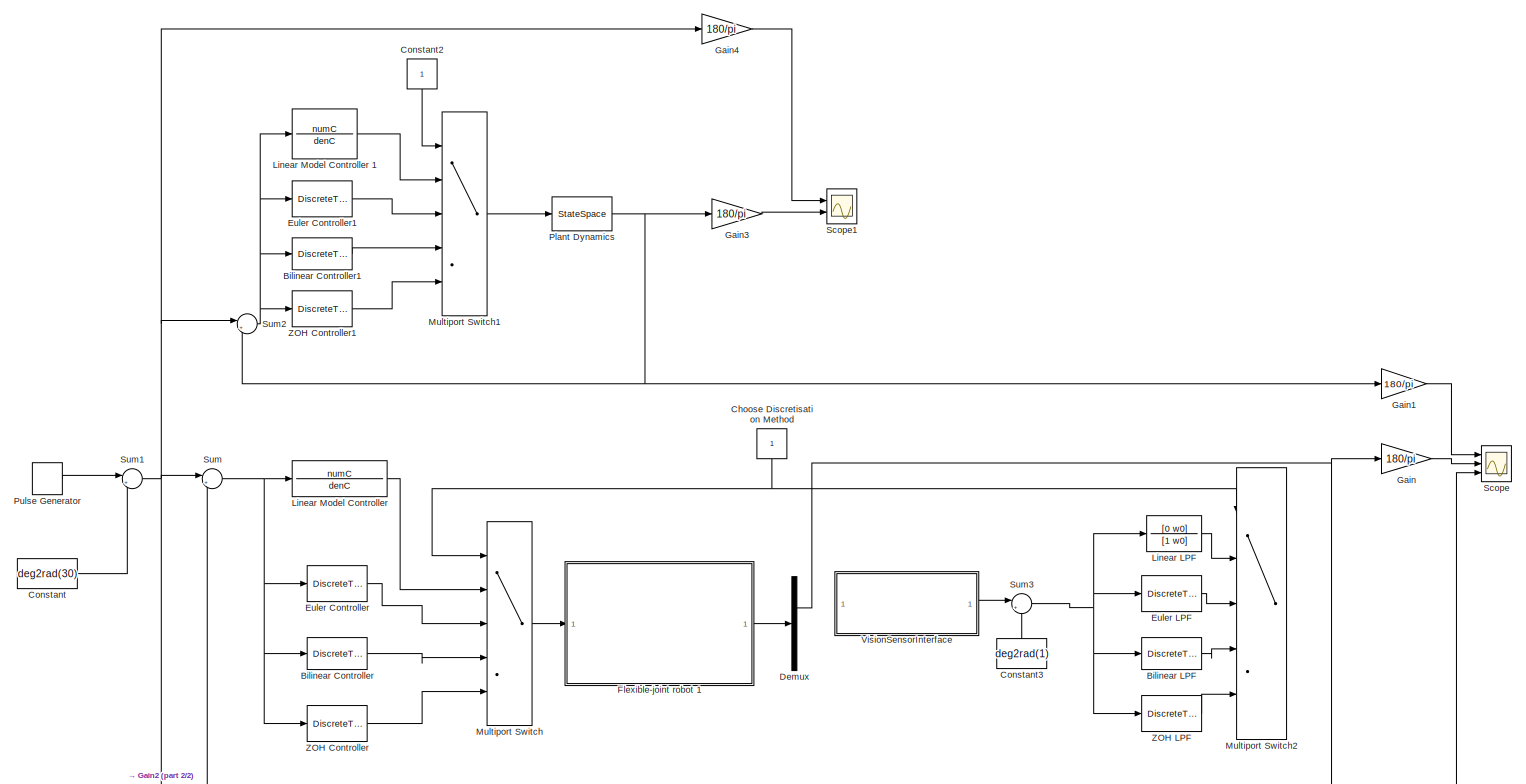
[diagram: root canvas - part 1/2, most of the canvas]
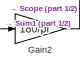
[diagram: root canvas - part 2/2, bottom right region]
MODEL slx_4cde97b0270c
KIND model
CONFIG AbsTol = auto
CONFIG EnableMultiTasking = off
CONFIG FixedStep = auto
CONFIG MaxStep = auto
CONFIG MinStep = auto
CONFIG RelTol = 1e-3
CONFIG SampleTimeConstraint = Unconstrained
CONFIG SolverName = ode45
CONFIG StartTime = 0.0
CONFIG StopTime = 20
BLOCK [DiscreteTransferFcn] Bilinear Controller
  Denominator = denTustin
  InputPortMap = u0
  Numerator = numTustin
  Ports = [1, 1]
BLOCK [DiscreteTransferFcn] Bilinear Controller1
  Denominator = denTustin
  InputPortMap = u0
  Numerator = numTustin
  Ports = [1, 1]
BLOCK [DiscreteTransferFcn] Bilinear LPF
  Denominator = denLPTustin
  InputPortMap = u0
  Numerator = numLPTustin
  Ports = [1, 1]
BLOCK [Constant] Choose Discretisation Method
  NameLocation = left
BLOCK [Constant] Constant
  Value = deg2rad(30)
BLOCK [Constant] Constant2
  NameLocation = left
BLOCK [Constant] Constant3
  NameLocation = right
  Value = deg2rad(1)
BLOCK [Demux] Demux
  Outputs = 5
  Ports = [1, 5]
BLOCK [DiscreteTransferFcn] Euler Controller
  Denominator = denEuler
  InputPortMap = u0
  Numerator = numEuler
  Ports = [1, 1]
BLOCK [DiscreteTransferFcn] Euler Controller1
  Denominator = denEuler
  InputPortMap = u0
  Numerator = numEuler
  Ports = [1, 1]
BLOCK [DiscreteTransferFcn] Euler LPF
  Denominator = denLPEuler
  InputPortMap = u0
  Numerator = numLPEuler
  Ports = [1, 1]
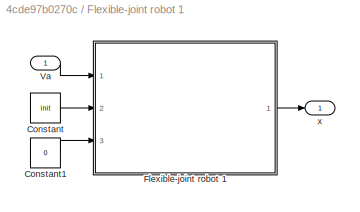
BLOCK [SubSystem] Flexible-joint robot 1
  Ports = [1, 1]
  RequestExecContextInheritance = off
BLOCK [Constant] Flexible-joint robot 1/Constant
  Value = init
BLOCK [Constant] Flexible-joint robot 1/Constant1
  Value = 0
BLOCK [ModelReference] Flexible-joint robot 1/Flexible-joint robot 1
  CopyOfModelProtected = on
  ModelNameDialog = Flexible_joint_robot_1
  ModelReferenceVersion = 1.65
  Ports = [3, 1]
BLOCK [Inport] Flexible-joint robot 1/Va
BLOCK [Outport] Flexible-joint robot 1/x
BLOCK [Gain] Gain
  Gain = 180/pi
BLOCK [Gain] Gain1
  Gain = 180/pi
BLOCK [Gain] Gain2
  Gain = 180/pi
BLOCK [Gain] Gain3
  Gain = 180/pi
BLOCK [Gain] Gain4
  Gain = 180/pi
BLOCK [TransferFcn] Linear LPF
  Denominator = [1 w0]
  Numerator = [0 w0]
BLOCK [TransferFcn] Linear Model Controller
  Denominator = denC
  Numerator = numC
BLOCK [TransferFcn] Linear Model Controller 1
  Denominator = denC
  Numerator = numC
BLOCK [MultiPortSwitch] Multiport Switch
  InputSameDT = off
  Inputs = 4
  Ports = [5, 1]
  SaturateOnIntegerOverflow = off
BLOCK [MultiPortSwitch] Multiport Switch1
  InputSameDT = off
  Inputs = 4
  Ports = [5, 1]
  SaturateOnIntegerOverflow = off
BLOCK [MultiPortSwitch] Multiport Switch2
  InputSameDT = off
  Inputs = 4
  Ports = [5, 1]
  SaturateOnIntegerOverflow = off
BLOCK [StateSpace] Plant Dynamics
  A = A
  B = B
  C = C
  D = D
  InitialCondition = deg2rad(30)
  Ports = [1, 1]
BLOCK [DiscretePulseGenerator] Pulse Generator
  Amplitude = deg2rad(30)
  Period = 10
  Ports = [0, 1]
  PulseType = Time based
  PulseWidth = 50
BLOCK [Scope] Scope
  Floating = off
  NumInputPorts = 3
  Ports = [3]
  ScopeSpecificationString = Simulink.scopes.TimeScopeBlockCfg('CurrentConfiguration', extmgr.ConfigurationSet(extmgr.Configuration('Core','General UI',true,'FigureColor',[1 1 1]),extmgr.Configuration('Core','Source UI',true),extmgr.Configuration('Sources','WiredSimulink',true),extmgr.Configuration('Visuals','Time Domain',true,'SerializedDisplays',{struct('MinYLimReal','25.12361','MaxYLimReal','64.63964','YLabelReal','','MinY...<+1860ch>
BLOCK [Scope] Scope1
  Floating = off
  NumInputPorts = 2
  Ports = [2]
  ScopeSpecificationString = Simulink.scopes.TimeScopeBlockCfg('CurrentConfiguration', extmgr.ConfigurationSet(extmgr.Configuration('Core','General UI',true,'FigureColor',[1 1 1]),extmgr.Configuration('Core','Source UI',true),extmgr.Configuration('Sources','WiredSimulink',true,'DataLoggingVariableName','ScopeData1'),extmgr.Configuration('Visuals','Time Domain',true,'SerializedDisplays',{struct('MinYLimReal','23.75112','MaxYLi...<+1691ch>
BLOCK [Sum] Sum
  Inputs = |+-
  Ports = [2, 1]
BLOCK [Sum] Sum1
  Inputs = |++
  Ports = [2, 1]
BLOCK [Sum] Sum2
  Inputs = |+-
  Ports = [2, 1]
BLOCK [Sum] Sum3
  Inputs = |+-
  Ports = [2, 1]
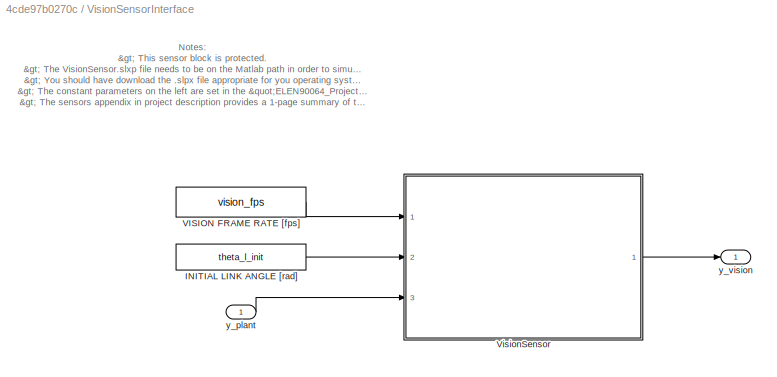
BLOCK [SubSystem] VisionSensorInterface
  Ports = [1, 1]
  RequestExecContextInheritance = off
  TreatAsAtomicUnit = on
BLOCK [Constant] VisionSensorInterface/INITIAL LINK ANGLE [rad]
  Value = theta_l_init
BLOCK [Constant] VisionSensorInterface/VISION FRAME RATE [fps]
  Value = vision_fps
BLOCK [ModelReference] VisionSensorInterface/VisionSensor
  CopyOfModelProtected = on
  ModelNameDialog = VisionSensor.slxp
  ModelReferenceVersion = 1.19
  Ports = [3, 1]
BLOCK [Inport] VisionSensorInterface/y_plant
BLOCK [Outport] VisionSensorInterface/y_vision
BLOCK [DiscreteTransferFcn] ZOH Controller
  Denominator = denZOH
  InputPortMap = u0
  Numerator = numZOH
  Ports = [1, 1]
BLOCK [DiscreteTransferFcn] ZOH Controller1
  Denominator = denZOH
  InputPortMap = u0
  Numerator = numZOH
  Ports = [1, 1]
BLOCK [DiscreteTransferFcn] ZOH LPF
  Denominator = denLPZOH
  InputPortMap = u0
  Numerator = numLPZOH
  Ports = [1, 1]
ANNOTATION VisionSensorInterface: Notes: > This sensor block is protected. > The VisionSensor.slxp file needs to be on the Matlab path in order to simulate this sensor. > You should have download the .slpx file appropriate for you operating system {Windows, Mac, Linux}. > The constant parameters on the left are set in the "ELEN90064_Project_Parameters.m" script. > The sensors appendix in project description provides a 1-page summa...<+179ch>
LINE Bilinear Controller1:1 -> Multiport Switch1:4
LINE Bilinear Controller:1 -> Multiport Switch:4
LINE Bilinear LPF:1 -> Multiport Switch2:4
NET Choose Discretisation Method:1 -> Multiport Switch2:1, Multiport Switch:1
LINE Constant2:1 -> Multiport Switch1:1
LINE Constant3:1 -> Sum3:2
LINE Constant:1 -> Sum1:2
NET Demux:2 -> Gain:1, Sum:2
LINE Euler Controller1:1 -> Multiport Switch1:3
LINE Euler Controller:1 -> Multiport Switch:3
LINE Euler LPF:1 -> Multiport Switch2:3
LINE Flexible-joint robot 1/Constant1:1 -> Flexible-joint robot 1/Flexible-joint robot 1:3
LINE Flexible-joint robot 1/Constant:1 -> Flexible-joint robot 1/Flexible-joint robot 1:2
LINE Flexible-joint robot 1/Flexible-joint robot 1:1 -> Flexible-joint robot 1/x:1
LINE Flexible-joint robot 1/Va:1 -> Flexible-joint robot 1/Flexible-joint robot 1:1
LINE Flexible-joint robot 1:1 -> Demux:1
LINE Gain1:1 -> Scope:1
LINE Gain2:1 -> Scope:3
LINE Gain3:1 -> Scope1:2
LINE Gain4:1 -> Scope1:1
LINE Gain:1 -> Scope:2
LINE Linear LPF:1 -> Multiport Switch2:2
LINE Linear Model Controller 1:1 -> Multiport Switch1:2
LINE Linear Model Controller:1 -> Multiport Switch:2
LINE Multiport Switch1:1 -> Plant Dynamics:1
LINE Multiport Switch:1 -> Flexible-joint robot 1:1
NET Plant Dynamics:1 -> Gain1:1, Gain3:1, Sum2:2
LINE Pulse Generator:1 -> Sum1:1
NET Sum1:1 -> Gain2:1, Gain4:1, Sum2:1, Sum:1
NET Sum2:1 -> Bilinear Controller1:1, Euler Controller1:1, Linear Model Controller 1:1, ZOH Controller1:1
NET Sum3:1 -> Bilinear LPF:1, Euler LPF:1, Linear LPF:1, ZOH LPF:1
NET Sum:1 -> Bilinear Controller:1, Euler Controller:1, Linear Model Controller:1, ZOH Controller:1
LINE VisionSensorInterface/INITIAL LINK ANGLE [rad]:1 -> VisionSensorInterface/VisionSensor:2
LINE VisionSensorInterface/VISION FRAME RATE [fps]:1 -> VisionSensorInterface/VisionSensor:1
LINE VisionSensorInterface/VisionSensor:1 -> VisionSensorInterface/y_vision:1
LINE VisionSensorInterface/y_plant:1 -> VisionSensorInterface/VisionSensor:3
LINE VisionSensorInterface:1 -> Sum3:1
LINE ZOH Controller1:1 -> Multiport Switch1:5
LINE ZOH Controller:1 -> Multiport Switch:5
LINE ZOH LPF:1 -> Multiport Switch2:5
note: NET lines group one-source signal fan-out (src -> all destinations, sorted); 1:1 wires keep LINE
